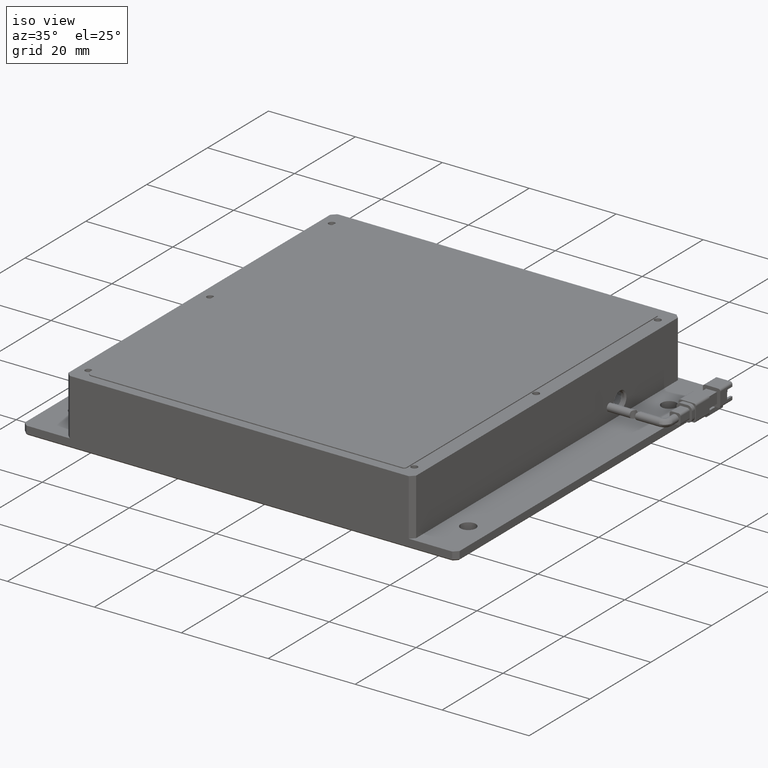
[diagram: clean part render]
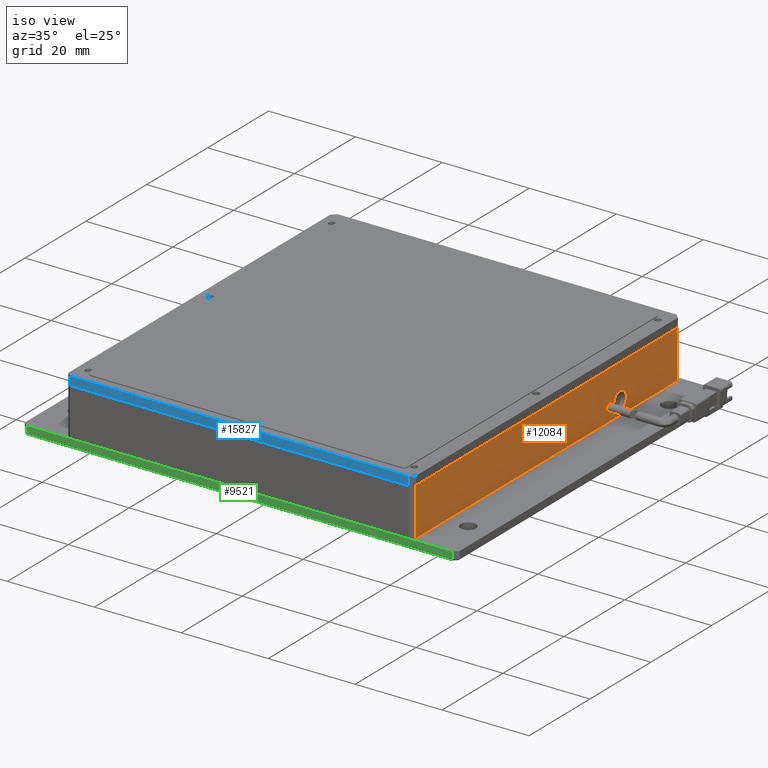
[diagram: same view with three faces highlighted in distinct colors, each labeled with its STEP entity id]
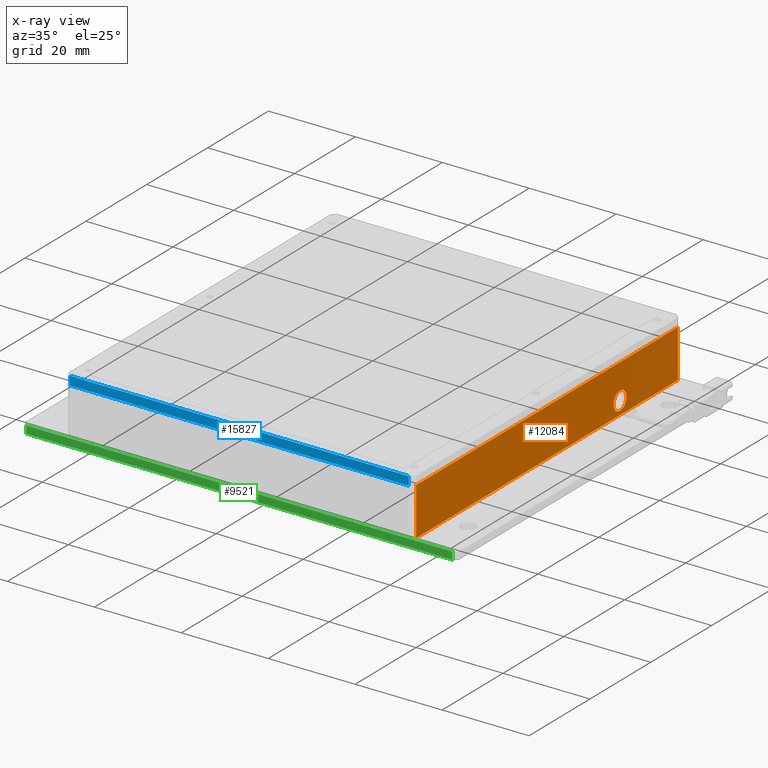
[diagram: x-ray of the same camera — body ghosted, the three highlighted faces saturated]
A machine part, iso view with three faces highlighted in distinct colors.
The next image is the same camera in x-ray (body ghosted, the three faces saturated) — at least one of them is partly hidden behind the body in this view.
Their STEP definitions:

[orange] entity #12084 — the highlighted planar face has unit normal (-1, 0, 0).
#372 = LINE ( 'NONE', #11990, #14544 ) ;
#785 = DIRECTION ( 'NONE',  ( -0.0000000000000000000, -1.000000000000000000, -0.0000000000000000000 ) ) ;
#927 = EDGE_CURVE ( 'NONE', #4792, #8624, #14771, .T. ) ;
#1062 = AXIS2_PLACEMENT_3D ( 'NONE', #3464, #13019, #4865 ) ;
#1134 = DIRECTION ( 'NONE',  ( 0.0000000000000000000, 0.0000000000000000000, -1.000000000000000000 ) ) ;
#1608 = CIRCLE ( 'NONE', #8855, 2.099999999984447600 ) ;
#1766 = FACE_OUTER_BOUND ( 'NONE', #13874, .T. ) ;
#1974 = PLANE ( 'NONE',  #1062 ) ;
#2182 = CARTESIAN_POINT ( 'NONE',  ( 57.05231004200076900, -47.20007636502479200, 10.99999999999545100 ) ) ;
#2309 = ORIENTED_EDGE ( 'NONE', *, *, #9146, .F. ) ;
#2510 = ORIENTED_EDGE ( 'NONE', *, *, #2799, .F. ) ;
#2722 = ORIENTED_EDGE ( 'NONE', *, *, #927, .F. ) ;
#2757 = CIRCLE ( 'NONE', #11872, 2.099999999984447600 ) ;
#2799 = EDGE_CURVE ( 'NONE', #4451, #17154, #372, .T. ) ;
#3464 = CARTESIAN_POINT ( 'NONE',  ( 57.05231004200075500, -48.20007636502477800, 10.99999999999545100 ) ) ;
#3685 = CARTESIAN_POINT ( 'NONE',  ( 57.05231004200074100, -47.20007636502480600, -4.548228113576691100E-012 ) ) ;
#4328 = VECTOR ( 'NONE', #8841, 1000.000000000000000 ) ;
#4451 = VERTEX_POINT ( 'NONE', #8766 ) ;
#4792 = VERTEX_POINT ( 'NONE', #3685 ) ;
#4865 = DIRECTION ( 'NONE',  ( 0.0000000000000000000, 0.0000000000000000000, 1.000000000000000000 ) ) ;
#5084 = CARTESIAN_POINT ( 'NONE',  ( 57.05231004197073500, 19.79992363497521500, 2.999999999995452500 ) ) ;
#5375 = DIRECTION ( 'NONE',  ( -0.0000000000000000000, -1.000000000000000000, 0.0000000000000000000 ) ) ;
#5724 = EDGE_CURVE ( 'NONE', #4451, #8624, #10295, .T. ) ;
#6487 = DIRECTION ( 'NONE',  ( 0.0000000000000000000, 0.0000000000000000000, -1.000000000000000000 ) ) ;
#6824 = VECTOR ( 'NONE', #5375, 1000.000000000000000 ) ;
#7682 = CARTESIAN_POINT ( 'NONE',  ( 57.05231004200076900, 39.79992363497522200, 10.99999999999545100 ) ) ;
#8152 = EDGE_LOOP ( 'NONE', ( #2309, #12661 ) ) ;
#8624 = VERTEX_POINT ( 'NONE', #2182 ) ;
#8766 = CARTESIAN_POINT ( 'NONE',  ( 57.05231004200076900, 38.79992363497521500, 10.99999999999545100 ) ) ;
#8841 = DIRECTION ( 'NONE',  ( 0.0000000000000000000, 0.0000000000000000000, 1.000000000000000000 ) ) ;
#8855 = AXIS2_PLACEMENT_3D ( 'NONE', #5084, #14630, #6487 ) ;
#9094 = FACE_BOUND ( 'NONE', #8152, .T. ) ;
#9146 = EDGE_CURVE ( 'NONE', #16915, #11803, #1608, .T. ) ;
#9388 = DIRECTION ( 'NONE',  ( 1.000000000000000000, 0.0000000000000000000, 0.0000000000000000000 ) ) ;
#9873 = VECTOR ( 'NONE', #785, 1000.000000000000000 ) ;
#10295 = LINE ( 'NONE', #7682, #9873 ) ;
#11045 = DIRECTION ( 'NONE',  ( -0.0000000000000000000, -0.0000000000000000000, -1.000000000000000000 ) ) ;
#11300 = CARTESIAN_POINT ( 'NONE',  ( 57.05231004200075500, -47.20007636502478500, 10.99999999999545100 ) ) ;
#11305 = CARTESIAN_POINT ( 'NONE',  ( 57.05231004197073500, 19.79992363497521500, 5.099999999979897500 ) ) ;
#11598 = CARTESIAN_POINT ( 'NONE',  ( 57.05231004200075500, 38.79992363497521500, -4.550179677487165000E-012 ) ) ;
#11803 = VERTEX_POINT ( 'NONE', #11305 ) ;
#11872 = AXIS2_PLACEMENT_3D ( 'NONE', #17549, #9388, #1134 ) ;
#11990 = CARTESIAN_POINT ( 'NONE',  ( 57.05231004200075500, 38.79992363497520100, 10.99999999999545100 ) ) ;
#12084 = ADVANCED_FACE ( 'NONE', ( #1766, #9094 ), #1974, .F. ) ;
#12150 = CARTESIAN_POINT ( 'NONE',  ( 57.05231004200075500, -48.20007636502477800, -4.547577592273199800E-012 ) ) ;
#12661 = ORIENTED_EDGE ( 'NONE', *, *, #16144, .F. ) ;
#12695 = CARTESIAN_POINT ( 'NONE',  ( 57.05231004197073500, 19.79992363497521500, 0.9000000000110074400 ) ) ;
#13019 = DIRECTION ( 'NONE',  ( -1.000000000000000000, 0.0000000000000000000, 0.0000000000000000000 ) ) ;
#13280 = ORIENTED_EDGE ( 'NONE', *, *, #16716, .F. ) ;
#13874 = EDGE_LOOP ( 'NONE', ( #2722, #13280, #2510, #14409 ) ) ;
#14409 = ORIENTED_EDGE ( 'NONE', *, *, #5724, .T. ) ;
#14488 = LINE ( 'NONE', #12150, #6824 ) ;
#14544 = VECTOR ( 'NONE', #11045, 1000.000000000000000 ) ;
#14630 = DIRECTION ( 'NONE',  ( 1.000000000000000000, 0.0000000000000000000, 0.0000000000000000000 ) ) ;
#14771 = LINE ( 'NONE', #11300, #4328 ) ;
#16144 = EDGE_CURVE ( 'NONE', #11803, #16915, #2757, .T. ) ;
#16716 = EDGE_CURVE ( 'NONE', #17154, #4792, #14488, .T. ) ;
#16915 = VERTEX_POINT ( 'NONE', #12695 ) ;
#17154 = VERTEX_POINT ( 'NONE', #11598 ) ;
#17549 = CARTESIAN_POINT ( 'NONE',  ( 57.05231004197073500, 19.79992363497521500, 2.999999999995452500 ) ) ;

[blue] entity #15827 — the highlighted planar face has unit normal (0, 1, 0).
#180 = VECTOR ( 'NONE', #14598, 1000.000000000000000 ) ;
#252 = AXIS2_PLACEMENT_3D ( 'NONE', #7335, #16850, #8660 ) ;
#555 = ORIENTED_EDGE ( 'NONE', *, *, #2352, .F. ) ;
#1182 = CARTESIAN_POINT ( 'NONE',  ( 56.05231004200067700, -48.20007636502477800, 10.99999999999545100 ) ) ;
#1493 = VECTOR ( 'NONE', #10976, 1000.000000000000000 ) ;
#1495 = VERTEX_POINT ( 'NONE', #7487 ) ;
#2352 = EDGE_CURVE ( 'NONE', #17693, #12384, #7546, .T. ) ;
#2926 = EDGE_CURVE ( 'NONE', #1495, #17693, #4068, .T. ) ;
#4068 = LINE ( 'NONE', #10621, #11330 ) ;
#4150 = EDGE_LOOP ( 'NONE', ( #13649, #17811, #555, #12859 ) ) ;
#4808 = DIRECTION ( 'NONE',  ( 1.000000000000000000, -4.440892098500626200E-016, 0.0000000000000000000 ) ) ;
#6025 = DIRECTION ( 'NONE',  ( -1.000000000000000000, 4.440892098500626200E-016, 0.0000000000000000000 ) ) ;
#7335 = CARTESIAN_POINT ( 'NONE',  ( 57.05231004200068400, -48.20007636502477800, 10.99999999999545100 ) ) ;
#7487 = CARTESIAN_POINT ( 'NONE',  ( -21.94768995799933400, -48.20007636502474200, 12.99999999999545100 ) ) ;
#7546 = LINE ( 'NONE', #9160, #180 ) ;
#8613 = PLANE ( 'NONE',  #252 ) ;
#8660 = DIRECTION ( 'NONE',  ( 0.0000000000000000000, 0.0000000000000000000, -1.000000000000000000 ) ) ;
#9113 = LINE ( 'NONE', #15543, #12751 ) ;
#9160 = CARTESIAN_POINT ( 'NONE',  ( 56.05231004200066300, -48.20007636502477800, 10.99999999999545100 ) ) ;
#9599 = CARTESIAN_POINT ( 'NONE',  ( -21.94768995799933400, -48.20007636502474200, 10.99999999999545100 ) ) ;
#9696 = EDGE_CURVE ( 'NONE', #12384, #10207, #9113, .T. ) ;
#10207 = VERTEX_POINT ( 'NONE', #11536 ) ;
#10621 = CARTESIAN_POINT ( 'NONE',  ( 57.05231004200069800, -48.20007636502477800, 12.99999999999545100 ) ) ;
#10976 = DIRECTION ( 'NONE',  ( -0.0000000000000000000, -0.0000000000000000000, 1.000000000000000000 ) ) ;
#11330 = VECTOR ( 'NONE', #4808, 1000.000000000000000 ) ;
#11536 = CARTESIAN_POINT ( 'NONE',  ( -21.94768995799933400, -48.20007636502474200, 10.99999999999545100 ) ) ;
#11776 = FACE_OUTER_BOUND ( 'NONE', #4150, .T. ) ;
#12384 = VERTEX_POINT ( 'NONE', #1182 ) ;
#12751 = VECTOR ( 'NONE', #6025, 1000.000000000000000 ) ;
#12859 = ORIENTED_EDGE ( 'NONE', *, *, #2926, .F. ) ;
#12878 = EDGE_CURVE ( 'NONE', #10207, #1495, #16091, .T. ) ;
#12948 = CARTESIAN_POINT ( 'NONE',  ( 56.05231004200067000, -48.20007636502477800, 12.99999999999545100 ) ) ;
#13649 = ORIENTED_EDGE ( 'NONE', *, *, #12878, .F. ) ;
#14598 = DIRECTION ( 'NONE',  ( 0.0000000000000000000, 0.0000000000000000000, -1.000000000000000000 ) ) ;
#15543 = CARTESIAN_POINT ( 'NONE',  ( 57.05231004200068400, -48.20007636502477800, 10.99999999999545100 ) ) ;
#15827 = ADVANCED_FACE ( 'NONE', ( #11776 ), #8613, .F. ) ;
#16091 = LINE ( 'NONE', #9599, #1493 ) ;
#16850 = DIRECTION ( 'NONE',  ( 4.440892098500626200E-016, 1.000000000000000000, 0.0000000000000000000 ) ) ;
#17693 = VERTEX_POINT ( 'NONE', #12948 ) ;
#17811 = ORIENTED_EDGE ( 'NONE', *, *, #9696, .F. ) ;

[green] entity #9521 — the highlighted planar face has unit normal (0, 1, 0).
#79 = CARTESIAN_POINT ( 'NONE',  ( -32.94768995799925900, -48.20007636502478500, -4.547577592273199800E-012 ) ) ;
#665 = VERTEX_POINT ( 'NONE', #17289 ) ;
#687 = CARTESIAN_POINT ( 'NONE',  ( -32.94768995799925900, -48.20007636502478500, -1.700000000004553000 ) ) ;
#1467 = DIRECTION ( 'NONE',  ( 0.0000000000000000000, -0.0000000000000000000, 1.000000000000000000 ) ) ;
#1872 = VECTOR ( 'NONE', #13539, 1000.000000000000000 ) ;
#1906 = ORIENTED_EDGE ( 'NONE', *, *, #8247, .F. ) ;
#3675 = VERTEX_POINT ( 'NONE', #12753 ) ;
#3838 = CARTESIAN_POINT ( 'NONE',  ( -32.94768995799925900, -48.20007636502478500, -4.547577592273199800E-012 ) ) ;
#3996 = CARTESIAN_POINT ( 'NONE',  ( 66.05231004200071300, -48.20007636502478500, -4.547577592273199800E-012 ) ) ;
#4891 = VERTEX_POINT ( 'NONE', #6993 ) ;
#5151 = VECTOR ( 'NONE', #5379, 1000.000000000000000 ) ;
#5379 = DIRECTION ( 'NONE',  ( -0.0000000000000000000, 0.0000000000000000000, -1.000000000000000000 ) ) ;
#5600 = LINE ( 'NONE', #12153, #5151 ) ;
#6993 = CARTESIAN_POINT ( 'NONE',  ( 66.05231004200074100, -48.20007636502478500, -4.547577592273199800E-012 ) ) ;
#7198 = VECTOR ( 'NONE', #8936, 1000.000000000000000 ) ;
#8247 = EDGE_CURVE ( 'NONE', #4891, #3675, #12398, .T. ) ;
#8283 = EDGE_CURVE ( 'NONE', #10226, #665, #5600, .T. ) ;
#8444 = LINE ( 'NONE', #687, #7198 ) ;
#8936 = DIRECTION ( 'NONE',  ( -1.000000000000000000, -0.0000000000000000000, 0.0000000000000000000 ) ) ;
#9132 = FACE_OUTER_BOUND ( 'NONE', #11960, .T. ) ;
#9521 = ADVANCED_FACE ( 'NONE', ( #9132 ), #12393, .F. ) ;
#9726 = DIRECTION ( 'NONE',  ( 0.0000000000000000000, 1.000000000000000000, 0.0000000000000000000 ) ) ;
#10226 = VERTEX_POINT ( 'NONE', #15651 ) ;
#10399 = LINE ( 'NONE', #3838, #14030 ) ;
#11562 = EDGE_CURVE ( 'NONE', #4891, #10226, #10399, .T. ) ;
#11960 = EDGE_LOOP ( 'NONE', ( #14063, #1906, #17258, #15144 ) ) ;
#12153 = CARTESIAN_POINT ( 'NONE',  ( -31.94768995799927300, -48.20007636502478500, -4.547577592273199800E-012 ) ) ;
#12393 = PLANE ( 'NONE',  #16410 ) ;
#12398 = LINE ( 'NONE', #3996, #1872 ) ;
#12753 = CARTESIAN_POINT ( 'NONE',  ( 66.05231004200074100, -48.20007636502478500, -1.700000000004553000 ) ) ;
#13539 = DIRECTION ( 'NONE',  ( -0.0000000000000000000, 0.0000000000000000000, -1.000000000000000000 ) ) ;
#14030 = VECTOR ( 'NONE', #14749, 1000.000000000000000 ) ;
#14063 = ORIENTED_EDGE ( 'NONE', *, *, #14921, .F. ) ;
#14749 = DIRECTION ( 'NONE',  ( -1.000000000000000000, 0.0000000000000000000, -0.0000000000000000000 ) ) ;
#14921 = EDGE_CURVE ( 'NONE', #3675, #665, #8444, .T. ) ;
#15144 = ORIENTED_EDGE ( 'NONE', *, *, #8283, .T. ) ;
#15651 = CARTESIAN_POINT ( 'NONE',  ( -31.94768995799927300, -48.20007636502478500, -4.547577592273199800E-012 ) ) ;
#16410 = AXIS2_PLACEMENT_3D ( 'NONE', #79, #9726, #1467 ) ;
#17258 = ORIENTED_EDGE ( 'NONE', *, *, #11562, .T. ) ;
#17289 = CARTESIAN_POINT ( 'NONE',  ( -31.94768995799927300, -48.20007636502478500, -1.700000000004552100 ) ) ;